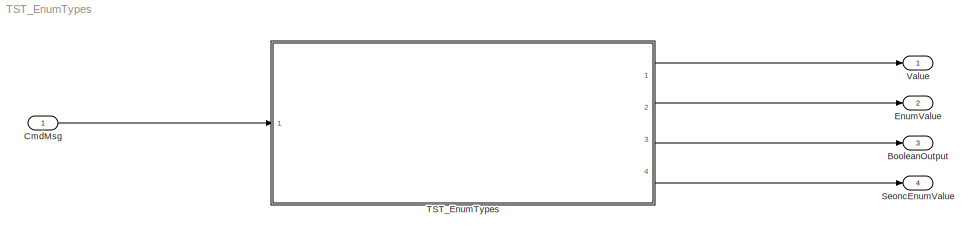
MODEL TST_EnumTypes
KIND model
BLOCK [Outport] BooleanOutput
  IconDisplay = Port number
  OutDataTypeStr = boolean
  Port = 3
  PortDimensions = 1
  SID = 37
BLOCK [Inport] CmdMsg
  BusOutputAsStruct = on
  IconDisplay = Port number
  OutDataTypeStr = Bus: DIL_VmmGsFcsCommandsMessage_Data
  SID = 23
BLOCK [Outport] EnumValue
  IconDisplay = Port number
  OutDataTypeStr = Enum: DIL_VmmGsFcsCommandsMessage_LongApModeCmd
  Port = 2
  PortDimensions = 1
  SID = 32
BLOCK [Outport] SeoncEnumValue
  IconDisplay = Port number
  OutDataTypeStr = Enum: DIL_VmmGsFcsCommandsMessage_LongApModeCmd
  Port = 4
  PortDimensions = 1
  SID = 45
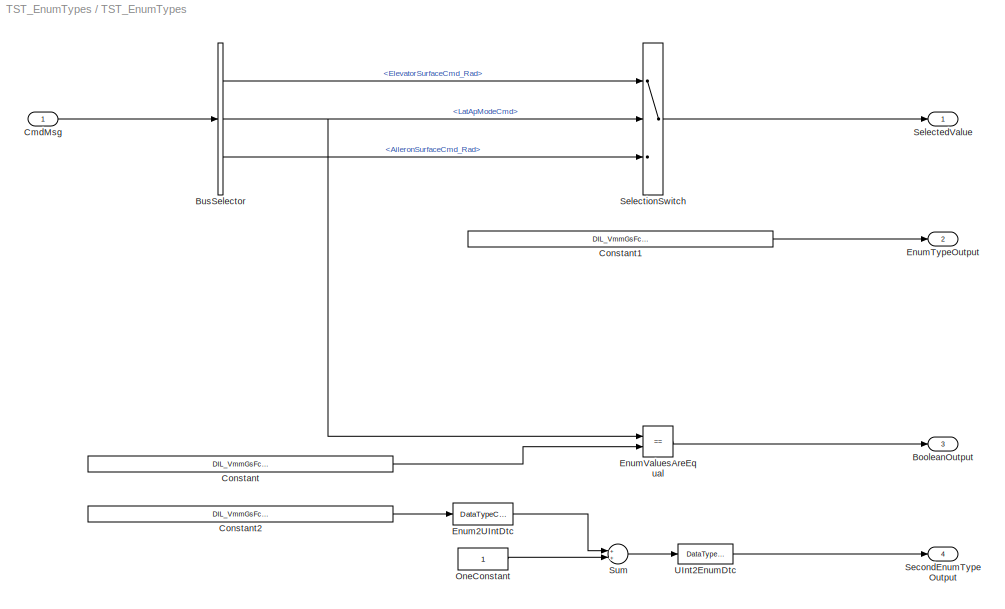
BLOCK [SubSystem] TST_EnumTypes
  Ports = [1, 4]
  RequestExecContextInheritance = off
  SID = 2
  TreatAsAtomicUnit = on
BLOCK [Outport] TST_EnumTypes/BooleanOutput
  IconDisplay = Port number
  OutDataTypeStr = boolean
  Port = 3
  PortDimensions = 1
  SID = 36
BLOCK [BusSelector] TST_EnumTypes/BusSelector
  OutputAsBus = off
  OutputSignals = ElevatorSurfaceCmd_Rad,LatApModeCmd,AileronSurfaceCmd_Rad
  Ports = [1, 3]
  SID = 28
BLOCK [Inport] TST_EnumTypes/CmdMsg
  IconDisplay = Port number
  OutDataTypeStr = Bus: DIL_VmmGsFcsCommandsMessage_Data
  SID = 8
BLOCK [Constant] TST_EnumTypes/Constant
  OutDataTypeStr = Enum: DIL_VmmGsFcsCommandsMessage_LatApModeCmd
  SID = 30
  Value = DIL_VmmGsFcsCommandsMessage_LatApModeCmd.Ptp
BLOCK [Constant] TST_EnumTypes/Constant1
  SID = 33
  Value = DIL_VmmGsFcsCommandsMessage_LongApModeCmd.Off
BLOCK [Constant] TST_EnumTypes/Constant2
  SID = 39
  Value = DIL_VmmGsFcsCommandsMessage_LongApModeCmd.Ptp
BLOCK [DataTypeConversion] TST_EnumTypes/Enum2UIntDtc
  OutDataTypeStr = uint32
  RndMeth = Floor
  SID = 41
  SaturateOnIntegerOverflow = off
BLOCK [Outport] TST_EnumTypes/EnumTypeOutput
  IconDisplay = Port number
  OutDataTypeStr = Enum: DIL_VmmGsFcsCommandsMessage_LongApModeCmd
  Port = 2
  PortDimensions = 1
  SID = 29
BLOCK [RelationalOperator] TST_EnumTypes/EnumValuesAreEqual
  InputSameDT = off
  Operator = ==
  OutDataTypeStr = boolean
  Ports = [2, 1]
  SID = 38
BLOCK [Constant] TST_EnumTypes/OneConstant
  OutDataTypeStr = uint32
  SID = 43
BLOCK [Outport] TST_EnumTypes/SecondEnumTypeOutput
  IconDisplay = Port number
  OutDataTypeStr = Enum: DIL_VmmGsFcsCommandsMessage_LongApModeCmd
  Port = 4
  PortDimensions = 1
  SID = 40
BLOCK [Outport] TST_EnumTypes/SelectedValue
  IconDisplay = Port number
  OutDataTypeStr = double
  PortDimensions = 1
  SID = 20
BLOCK [Switch] TST_EnumTypes/SelectionSwitch
  Criteria = u2 > Threshold
  InputSameDT = off
  SID = 19
  SaturateOnIntegerOverflow = off
  Threshold = DIL_VmmGsFcsCommandsMessage_LatApModeCmd.Off
BLOCK [Sum] TST_EnumTypes/Sum
  InputSameDT = off
  OutDataTypeStr = Inherit: Inherit via internal rule
  Ports = [2, 1]
  SID = 42
  SaturateOnIntegerOverflow = off
BLOCK [DataTypeConversion] TST_EnumTypes/UInt2EnumDtc
  OutDataTypeStr = Enum: DIL_VmmGsFcsCommandsMessage_LongApModeCmd
  RndMeth = Floor
  SID = 44
  SaturateOnIntegerOverflow = off
BLOCK [Outport] Value
  IconDisplay = Port number
  OutDataTypeStr = double
  PortDimensions = 1
  SID = 25
LINE CmdMsg:1 -> TST_EnumTypes:1
LINE TST_EnumTypes/BusSelector:1 -> TST_EnumTypes/SelectionSwitch:1
NET TST_EnumTypes/BusSelector:2 -> TST_EnumTypes/EnumValuesAreEqual:1, TST_EnumTypes/SelectionSwitch:2
LINE TST_EnumTypes/BusSelector:3 -> TST_EnumTypes/SelectionSwitch:3
LINE TST_EnumTypes/CmdMsg:1 -> TST_EnumTypes/BusSelector:1
LINE TST_EnumTypes/Constant1:1 -> TST_EnumTypes/EnumTypeOutput:1
LINE TST_EnumTypes/Constant2:1 -> TST_EnumTypes/Enum2UIntDtc:1
LINE TST_EnumTypes/Constant:1 -> TST_EnumTypes/EnumValuesAreEqual:2
LINE TST_EnumTypes/Enum2UIntDtc:1 -> TST_EnumTypes/Sum:1
LINE TST_EnumTypes/EnumValuesAreEqual:1 -> TST_EnumTypes/BooleanOutput:1
LINE TST_EnumTypes/OneConstant:1 -> TST_EnumTypes/Sum:2
LINE TST_EnumTypes/SelectionSwitch:1 -> TST_EnumTypes/SelectedValue:1
LINE TST_EnumTypes/Sum:1 -> TST_EnumTypes/UInt2EnumDtc:1
LINE TST_EnumTypes/UInt2EnumDtc:1 -> TST_EnumTypes/SecondEnumTypeOutput:1
LINE TST_EnumTypes:1 -> Value:1
LINE TST_EnumTypes:2 -> EnumValue:1
LINE TST_EnumTypes:3 -> BooleanOutput:1
LINE TST_EnumTypes:4 -> SeoncEnumValue:1
note: NET lines group one-source signal fan-out (src -> all destinations, sorted); 1:1 wires keep LINE
